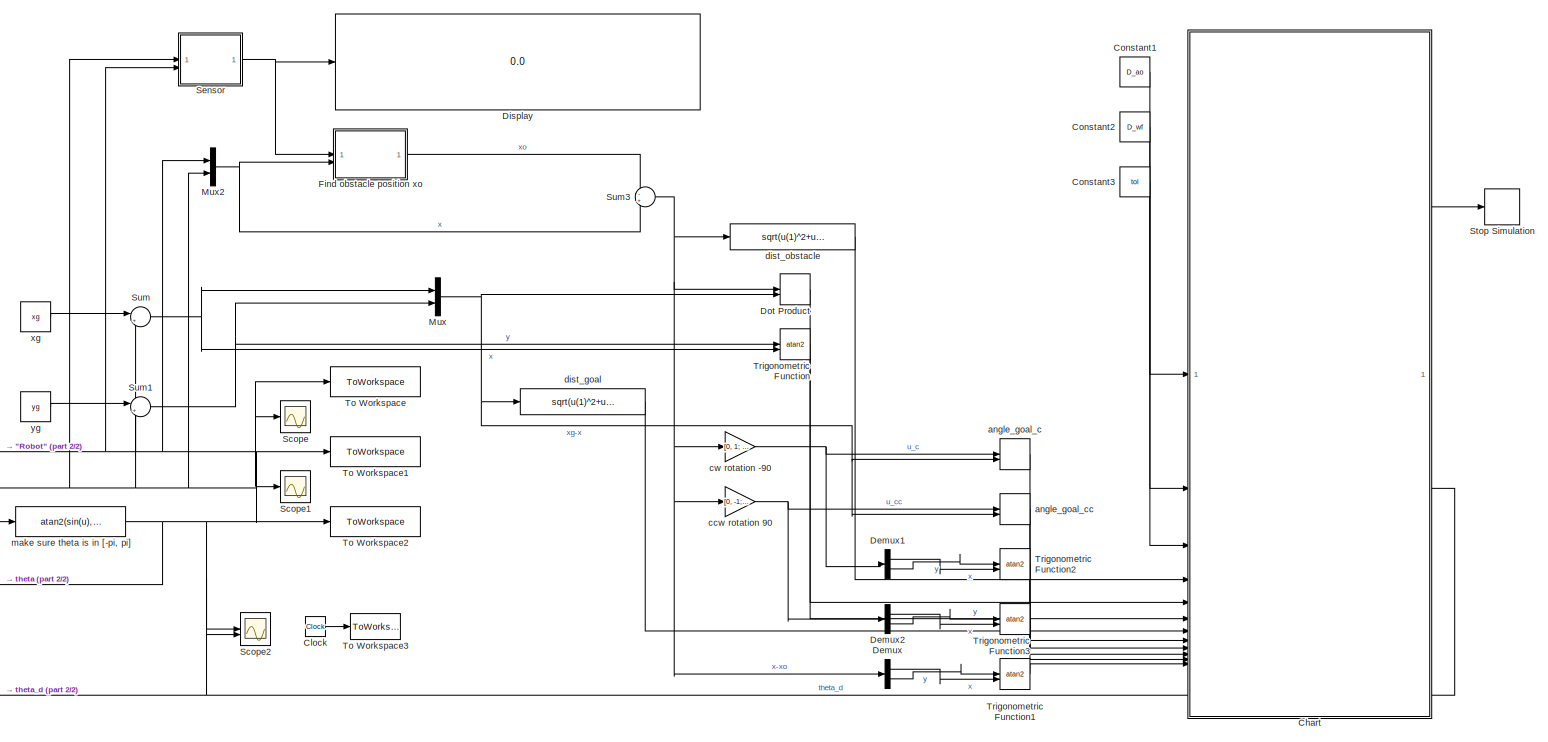
[diagram: root canvas - part 1/2, most of the canvas]
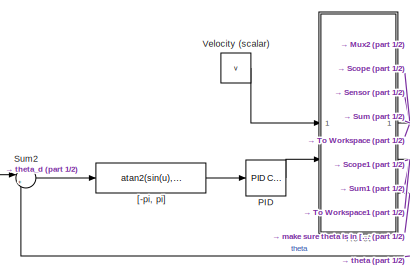
[diagram: root canvas - part 2/2, middle left region]
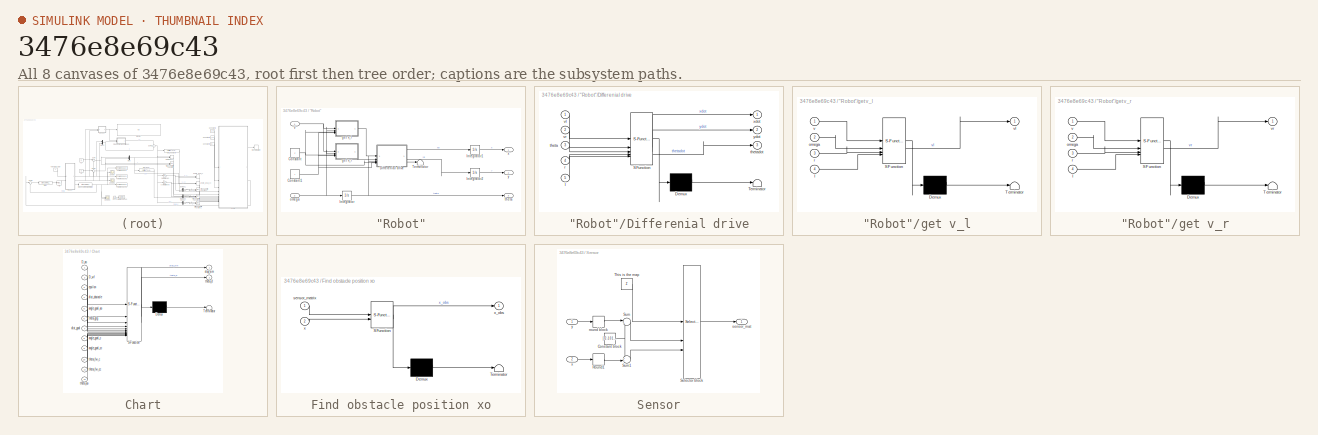
[diagram: thumbnail index - all 8 canvases of the model, root first then tree order]
MODEL slx_3476e8e69c43
KIND model
CONFIG AbsTol = auto
CONFIG EnableMultiTasking = off
CONFIG FixedStep = auto
CONFIG MaxStep = auto
CONFIG MinStep = auto
CONFIG RelTol = 1e-3
CONFIG SampleTimeConstraint = Unconstrained
CONFIG SolverName = VariableStepAuto
CONFIG StartTime = 0.0
CONFIG StopTime = SimulationTime
BLOCK [SubSystem] "Robot"
BLOCK [Constant] "Robot"/Constant
  Value = r
BLOCK [Constant] "Robot"/Constant1
  Value = l
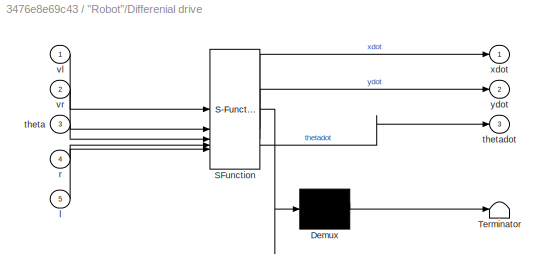
BLOCK [SubSystem] "Robot"/Differenial drive
  ErrorFcn = Stateflow.Translate.translate
  PermitHierarchicalResolution = ExplicitOnly
  SFBlockType = MATLAB Function
  TreatAsAtomicUnit = on
BLOCK [Demux] "Robot"/Differenial drive/ Demux 
  Outputs = 1
BLOCK [S-Function] "Robot"/Differenial drive/ SFunction 
  EnableBusSupport = on
  FunctionName = sf_sfun
  PortCounts = [5 4]
  SFcnIsStateOwnerBlock = off
  SFunctionDeploymentMode = off
  Tag = Stateflow S-Function 3
BLOCK [Terminator] "Robot"/Differenial drive/ Terminator 
BLOCK [Inport] "Robot"/Differenial drive/l
  Port = 5
BLOCK [Inport] "Robot"/Differenial drive/r
  Port = 4
BLOCK [Inport] "Robot"/Differenial drive/theta
  Port = 3
BLOCK [Outport] "Robot"/Differenial drive/thetadot
  Port = 3
BLOCK [Inport] "Robot"/Differenial drive/vl
BLOCK [Inport] "Robot"/Differenial drive/vr
  Port = 2
BLOCK [Outport] "Robot"/Differenial drive/xdot
BLOCK [Outport] "Robot"/Differenial drive/ydot
  Port = 2
BLOCK [Integrator] "Robot"/Integrator
  InitialCondition = theta0
BLOCK [Integrator] "Robot"/Integrator1
  InitialCondition = x0
BLOCK [Integrator] "Robot"/Integrator2
  InitialCondition = y0
BLOCK [Terminator] "Robot"/Terminator
BLOCK [SubSystem] "Robot"/get v_l
  ErrorFcn = Stateflow.Translate.translate
  PermitHierarchicalResolution = ExplicitOnly
  SFBlockType = MATLAB Function
  TreatAsAtomicUnit = on
BLOCK [Demux] "Robot"/get v_l/ Demux 
  Outputs = 1
BLOCK [S-Function] "Robot"/get v_l/ SFunction 
  EnableBusSupport = on
  FunctionName = sf_sfun
  PortCounts = [4 2]
  SFcnIsStateOwnerBlock = off
  SFunctionDeploymentMode = off
  Tag = Stateflow S-Function 2
BLOCK [Terminator] "Robot"/get v_l/ Terminator 
BLOCK [Inport] "Robot"/get v_l/l
  Port = 4
BLOCK [Inport] "Robot"/get v_l/omega
  Port = 2
BLOCK [Inport] "Robot"/get v_l/r
  Port = 3
BLOCK [Inport] "Robot"/get v_l/v
BLOCK [Outport] "Robot"/get v_l/vl
BLOCK [SubSystem] "Robot"/get v_r
  ErrorFcn = Stateflow.Translate.translate
  PermitHierarchicalResolution = ExplicitOnly
  SFBlockType = MATLAB Function
  TreatAsAtomicUnit = on
BLOCK [Demux] "Robot"/get v_r/ Demux 
  Outputs = 1
BLOCK [S-Function] "Robot"/get v_r/ SFunction 
  EnableBusSupport = on
  FunctionName = sf_sfun
  PortCounts = [4 2]
  SFcnIsStateOwnerBlock = off
  SFunctionDeploymentMode = off
  Tag = Stateflow S-Function 1
BLOCK [Terminator] "Robot"/get v_r/ Terminator 
BLOCK [Inport] "Robot"/get v_r/l
  Port = 4
BLOCK [Inport] "Robot"/get v_r/omega
  Port = 2
BLOCK [Inport] "Robot"/get v_r/r
  Port = 3
BLOCK [Inport] "Robot"/get v_r/v
BLOCK [Outport] "Robot"/get v_r/vr
BLOCK [Inport] "Robot"/omega
  Port = 2
BLOCK [Outport] "Robot"/theta
  Port = 3
BLOCK [Inport] "Robot"/v
BLOCK [Outport] "Robot"/x
BLOCK [Outport] "Robot"/y
  Port = 2
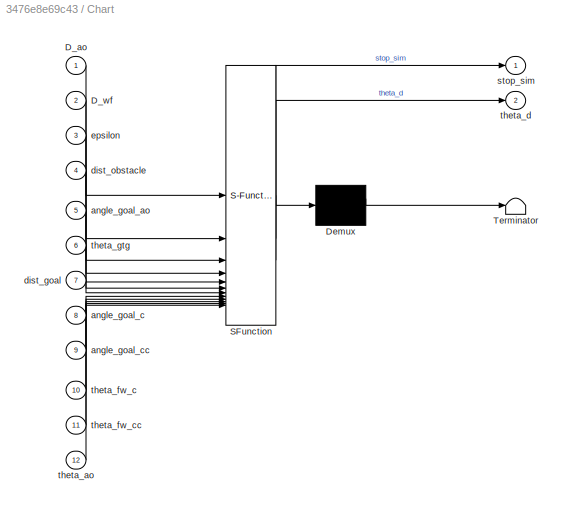
BLOCK [SubSystem] Chart
  ErrorFcn = Stateflow.Translate.translate
  PermitHierarchicalResolution = ExplicitOnly
  SFBlockType = Chart
  TreatAsAtomicUnit = on
BLOCK [Demux] Chart/ Demux 
  Outputs = 1
BLOCK [S-Function] Chart/ SFunction 
  EnableBusSupport = on
  FunctionName = sf_sfun
  PortCounts = [12 3]
  SFcnIsStateOwnerBlock = off
  SFunctionDeploymentMode = off
  Tag = Stateflow S-Function 5
BLOCK [Terminator] Chart/ Terminator 
BLOCK [Inport] Chart/D_ao
BLOCK [Inport] Chart/D_wf
  Port = 2
BLOCK [Inport] Chart/angle_goal_ao
  Port = 5
BLOCK [Inport] Chart/angle_goal_c
  Port = 8
BLOCK [Inport] Chart/angle_goal_cc
  Port = 9
BLOCK [Inport] Chart/dist_goal
  Port = 7
BLOCK [Inport] Chart/dist_obstacle
  Port = 4
BLOCK [Inport] Chart/epsilon
  Port = 3
BLOCK [Outport] Chart/stop_sim
BLOCK [Inport] Chart/theta_ao
  Port = 12
BLOCK [Outport] Chart/theta_d
  Port = 2
BLOCK [Inport] Chart/theta_fw_c
  Port = 10
BLOCK [Inport] Chart/theta_fw_cc
  Port = 11
BLOCK [Inport] Chart/theta_gtg
  Port = 6
BLOCK [Clock] Clock
BLOCK [Constant] Constant1
  Value = D_ao
BLOCK [Constant] Constant2
  Value = D_wf
BLOCK [Constant] Constant3
  Value = tol
BLOCK [Demux] Demux
  Outputs = 2
BLOCK [Demux] Demux1
  Outputs = 2
BLOCK [Demux] Demux2
  Outputs = 2
BLOCK [Display] Display
  Decimation = 1
BLOCK [DotProduct] Dot Product
  OutDataTypeStr = Inherit: Inherit via internal rule
BLOCK [SubSystem] Find obstacle position xo
  ErrorFcn = Stateflow.Translate.translate
  PermitHierarchicalResolution = ExplicitOnly
  SFBlockType = MATLAB Function
  TreatAsAtomicUnit = on
BLOCK [Demux] Find obstacle position xo/ Demux 
  Outputs = 1
BLOCK [S-Function] Find obstacle position xo/ SFunction 
  EnableBusSupport = on
  FunctionName = sf_sfun
  PortCounts = [2 2]
  SFcnIsStateOwnerBlock = off
  SFunctionDeploymentMode = off
  Tag = Stateflow S-Function 4
BLOCK [Terminator] Find obstacle position xo/ Terminator 
BLOCK [Inport] Find obstacle position xo/sensor_matrix
BLOCK [Inport] Find obstacle position xo/x
  Port = 2
BLOCK [Outport] Find obstacle position xo/x_obs
BLOCK [Mux] Mux
  DisplayOption = bar
  Inputs = 2
BLOCK [Mux] Mux2
  DisplayOption = bar
  Inputs = 2
BLOCK [Reference] PID  REF=slpidlib/PID Controller
  SourceBlock = slpidlib/PID Controller
  SourceType = PID 1dof
BLOCK [Scope] Scope
  Floating = off
  NumInputPorts = 1
  ScopeSpecificationString = Simulink.scopes.TimeScopeBlockCfg('CurrentConfiguration', extmgr.ConfigurationSet(extmgr.Configuration('Core','General UI',true),extmgr.Configuration('Core','Source UI',true),extmgr.Configuration('Sources','WiredSimulink',true),extmgr.Configuration('Visuals','Time Domain',true,'SerializedDisplays',{struct('MinYLimReal','1.24972','MaxYLimReal','38.75254','YLabelReal','','MinYLimMag','1.24972','MaxY...<+1382ch>
BLOCK [Scope] Scope1
  Floating = off
  NumInputPorts = 1
  ScopeSpecificationString = Simulink.scopes.TimeScopeBlockCfg('CurrentConfiguration', extmgr.ConfigurationSet(extmgr.Configuration('Core','General UI',true),extmgr.Configuration('Core','Source UI',true),extmgr.Configuration('Sources','WiredSimulink',true,'DataLoggingVariableName','ScopeData1'),extmgr.Configuration('Visuals','Time Domain',true,'SerializedDisplays',{struct('MinYLimReal','8.44434','MaxYLimReal','34.0009','YLabe...<+1417ch>
BLOCK [Scope] Scope2
  Floating = off
  NumInputPorts = 2
  ScopeSpecificationString = Simulink.scopes.TimeScopeBlockCfg('CurrentConfiguration', extmgr.ConfigurationSet(extmgr.Configuration('Core','General UI',true),extmgr.Configuration('Core','Source UI',true),extmgr.Configuration('Sources','WiredSimulink',true,'DataLoggingVariableName','ScopeData2'),extmgr.Configuration('Visuals','Time Domain',true,'SerializedDisplays',{struct('MinYLimReal','-3.92679','MaxYLimReal','3.92691','YLab...<+1397ch>
BLOCK [SubSystem] Sensor
BLOCK [Constant] Sensor/Constant block
  Value = [-2 -1 0 1 2]
BLOCK [Rounding] Sensor/Round1
  Operator = round
BLOCK [Selector] Sensor/Selector block
  IndexOptions = Index vector (port),Index vector (port)
  Indices = [1 3],1
  InputPortWidth = 3
  NumberOfDimensions = 2
  OutputSizes = 1,1
BLOCK [Sum] Sensor/Sum
  Inputs = |+-
  OutDataTypeStr = int32
  RndMeth = Round
BLOCK [Sum] Sensor/Sum1
  Inputs = ++|
  OutDataTypeStr = int32
  RndMeth = Round
BLOCK [Constant] Sensor/This is the map
  Value = Z
  VectorParams1D = off
BLOCK [Rounding] Sensor/round block
  Operator = round
BLOCK [Outport] Sensor/sensor_mat
BLOCK [Inport] Sensor/x
  Port = 2
BLOCK [Inport] Sensor/y
BLOCK [Stop] Stop Simulation
BLOCK [Sum] Sum
  Inputs = |+-
BLOCK [Sum] Sum1
  Inputs = |+-
BLOCK [Sum] Sum2
  Inputs = |+-
BLOCK [Sum] Sum3
  Inputs = -+
BLOCK [ToWorkspace] To Workspace
  FixptAsFi = on
  MaxDataPoints = inf
  SampleTime = -1
  VariableName = xpos
BLOCK [ToWorkspace] To Workspace1
  FixptAsFi = on
  MaxDataPoints = inf
  SampleTime = -1
  VariableName = ypos
BLOCK [ToWorkspace] To Workspace2
  FixptAsFi = on
  MaxDataPoints = inf
  SampleTime = -1
  VariableName = theta
BLOCK [ToWorkspace] To Workspace3
  FixptAsFi = on
  MaxDataPoints = inf
  SampleTime = -1
  Save2DSignal = 2-D array (concatenate along first dimension)
  VariableName = t
BLOCK [Trigonometry] Trigonometric Function
  Operator = atan2
BLOCK [Trigonometry] Trigonometric Function1
  Operator = atan2
BLOCK [Trigonometry] Trigonometric Function2
  Operator = atan2
BLOCK [Trigonometry] Trigonometric Function3
  Operator = atan2
BLOCK [Constant] Velocity (scalar)
  Value = v
BLOCK [Fcn] [-pi, pi]
  Expr = atan2(sin(u),cos(u))
BLOCK [DotProduct] angle_goal_c
  OutDataTypeStr = Inherit: Inherit via internal rule
BLOCK [DotProduct] angle_goal_cc
  OutDataTypeStr = Inherit: Inherit via internal rule
BLOCK [Gain] ccw rotation 90
  Gain = [0, -1; 1, 0]
  Multiplication = Matrix(K*u)
BLOCK [Gain] cw rotation -90
  Gain = [0, 1; -1, 0]
  Multiplication = Matrix(K*u)
BLOCK [Fcn] dist_goal
  Expr = sqrt(u(1)^2+u(2)^2)
  NameLocation = top
BLOCK [Fcn] dist_obstacle
  Expr = sqrt(u(1)^2+u(2)^2)
  NameLocation = top
BLOCK [Fcn] make sure theta is in [-pi, pi]
  Expr = atan2(sin(u),cos(u))
BLOCK [Constant] xg
  Value = xg
BLOCK [Constant] yg
  Value = yg
NET "Robot"/Constant1:1 -> "Robot"/Differenial drive:5, "Robot"/get v_l:4, "Robot"/get v_r:4
NET "Robot"/Constant:1 -> "Robot"/Differenial drive:4, "Robot"/get v_l:3, "Robot"/get v_r:3
LINE "Robot"/Differenial drive:1 -> "Robot"/Integrator1:1
LINE "Robot"/Differenial drive:2 -> "Robot"/Integrator2:1
LINE "Robot"/Differenial drive:3 -> "Robot"/Terminator:1
LINE "Robot"/Integrator1:1 -> "Robot"/x:1
LINE "Robot"/Integrator2:1 -> "Robot"/y:1
NET "Robot"/Integrator:1 -> "Robot"/Differenial drive:3, "Robot"/theta:1
LINE "Robot"/get v_l:1 -> "Robot"/Differenial drive:1
LINE "Robot"/get v_r:1 -> "Robot"/Differenial drive:2
NET "Robot"/omega:1 -> "Robot"/Integrator:1, "Robot"/get v_l:2, "Robot"/get v_r:2
NET "Robot"/v:1 -> "Robot"/get v_l:1, "Robot"/get v_r:1
NET "Robot":1 -> Mux2:1, Scope:1, Sensor:2, Sum:2, To Workspace:1
NET "Robot":2 -> Mux2:2, Scope1:1, Sensor:1, Sum1:2, To Workspace1:1
LINE "Robot":3 -> make sure theta is in [-pi, pi]:1
LINE Chart:1 -> Stop Simulation:1
NET Chart:2 -> Scope2:2, Sum2:1
LINE Clock:1 -> To Workspace3:1
LINE Constant1:1 -> Chart:1
LINE Constant2:1 -> Chart:2
LINE Constant3:1 -> Chart:3
LINE Demux1:1 -> Trigonometric Function2:2
LINE Demux1:2 -> Trigonometric Function2:1
LINE Demux2:1 -> Trigonometric Function3:2
LINE Demux2:2 -> Trigonometric Function3:1
LINE Demux:1 -> Trigonometric Function1:2
LINE Demux:2 -> Trigonometric Function1:1
LINE Dot Product:1 -> Chart:5
LINE Find obstacle position xo:1 -> Sum3:1
NET Mux2:1 -> Find obstacle position xo:2, Sum3:2
NET Mux:1 -> Dot Product:2, angle_goal_c:2, angle_goal_cc:2, dist_goal:1
LINE PID:1 -> "Robot":2
NET Sensor/Constant block:1 -> Sensor/Sum1:1, Sensor/Sum:2
LINE Sensor/Round1:1 -> Sensor/Sum1:2
LINE Sensor/Selector block:1 -> Sensor/sensor_mat:1
LINE Sensor/Sum1:1 -> Sensor/Selector block:3
LINE Sensor/Sum:1 -> Sensor/Selector block:2
LINE Sensor/This is the map:1 -> Sensor/Selector block:1
LINE Sensor/round block:1 -> Sensor/Sum:1
LINE Sensor/x:1 -> Sensor/Round1:1
LINE Sensor/y:1 -> Sensor/round block:1
NET Sensor:1 -> Display:1, Find obstacle position xo:1
NET Sum1:1 -> Mux:2, Trigonometric Function:1
LINE Sum2:1 -> [-pi, pi]:1
NET Sum3:1 -> Demux:1, Dot Product:1, ccw rotation 90:1, cw rotation -90:1, dist_obstacle:1
NET Sum:1 -> Mux:1, Trigonometric Function:2
LINE Trigonometric Function1:1 -> Chart:12
LINE Trigonometric Function2:1 -> Chart:10
LINE Trigonometric Function3:1 -> Chart:11
LINE Trigonometric Function:1 -> Chart:6
LINE Velocity (scalar):1 -> "Robot":1
LINE [-pi, pi]:1 -> PID:1
LINE angle_goal_c:1 -> Chart:8
LINE angle_goal_cc:1 -> Chart:9
NET ccw rotation 90:1 -> Demux2:1, angle_goal_cc:1
NET cw rotation -90:1 -> Demux1:1, angle_goal_c:1
LINE dist_goal:1 -> Chart:7
LINE dist_obstacle:1 -> Chart:4
NET make sure theta is in [-pi, pi]:1 -> Scope2:1, Sum2:2, To Workspace2:1
LINE xg:1 -> Sum:1
LINE yg:1 -> Sum1:1
note: NET lines group one-source signal fan-out (src -> all destinations, sorted); 1:1 wires keep LINE
CHART "Robot"/get v_r states=1 transitions=1
  STATE_LABEL 'eML_blk_kernel()'
  STATE_LABEL 'SCRIPT:\nfunction vr = fcn(v, omega, r, l)\n\nvr = get_vr(v, omega, r, l);'
CHART "Robot"/get v_l states=1 transitions=1
  STATE_LABEL 'eML_blk_kernel()'
  STATE_LABEL 'SCRIPT:\nfunction vl = fcn(v, omega, r, l)\n\nvl = get_vl(v, omega, r, l);'
CHART "Robot"/Differenial drive states=1 transitions=1
  STATE_LABEL 'eML_blk_kernel()'
  STATE_LABEL 'SCRIPT:\nfunction [xdot, ydot, thetadot] = fcn(vl, vr, theta, r, l)\n\n[xdot, ydot, thetadot] = differential_drive_xytheta(vl, vr, theta, r, l);\n'
CHART Find obstacle position
xo states=1 transitions=1
  STATE_LABEL 'eML_blk_kernel()'
  STATE_LABEL 'SCRIPT:\nfunction x_obs = fcn(sensor_matrix, x)\n\nx_obs = find_obs(sensor_matrix, x);\n'
CHART Chart states=5 transitions=10
  STATE_LABEL 'S_stop\nentry:\nstop_sim = 1;'
  STATE_LABEL 'S_GTG\nduring:\ntheta_d = theta_gtg;'
  STATE_LABEL 'S_FW_CC\nduring:\ntheta_d = theta_fw_cc;'
  STATE_LABEL 'S_FW_C\nduring:\ntheta_d = theta_fw_c;'
  STATE_LABEL 'S_AO\nduring:\ntheta_d = theta_ao;'
CHART  states=0 transitions=0
CHART  states=0 transitions=0
CHART  states=0 transitions=0
CHART  states=0 transitions=0
CHART  states=0 transitions=0
